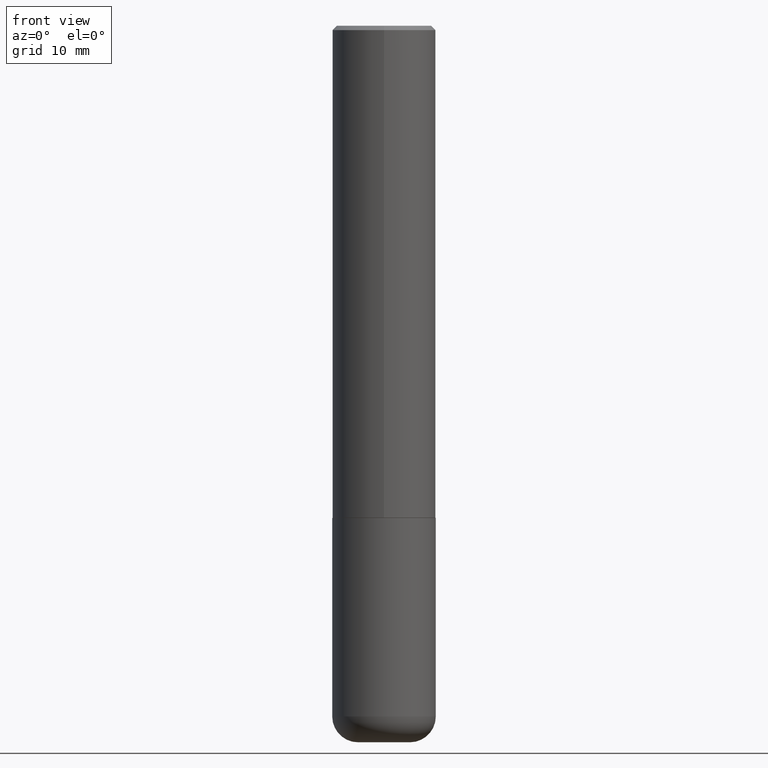
[diagram: clean part render]
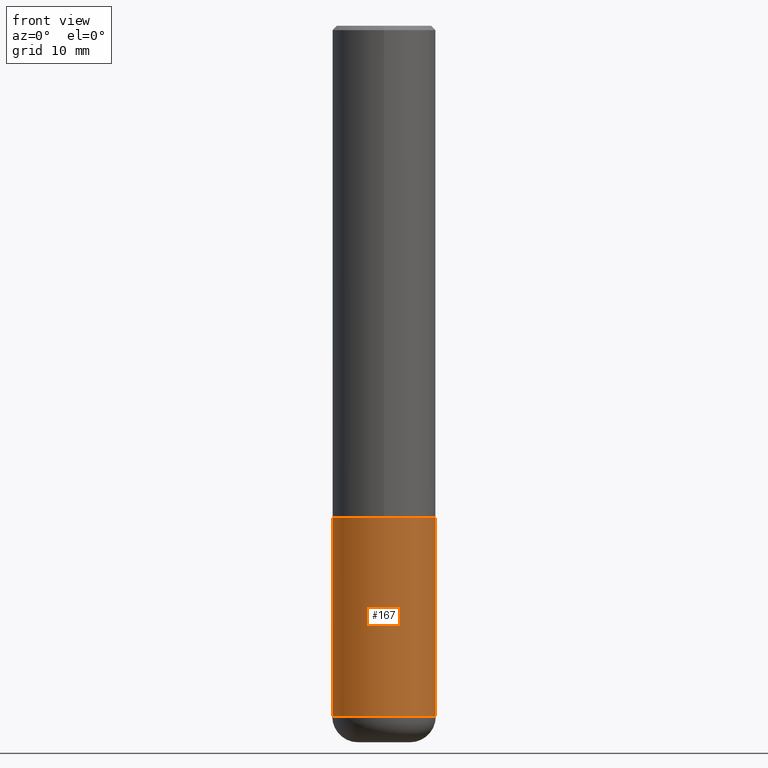
[diagram: same view with one face highlighted and labeled with its STEP entity id]
A machine part, front view. The second image highlights one B-rep face of the part: STEP entity #167.
In plain terms, the highlighted cylindrical surface (partial cylindrical patch) has radius 5.9995 mm, axis along (-0, 0, 1).
Its self-contained STEP definition (entity closure, byte-faithful):
#2 = DIRECTION ( 'NONE',  ( -2.445468806185136877E-29, 3.491481338843145188E-15, 1.000000000000000000 ) ) ;
#3 = ORIENTED_EDGE ( 'NONE', *, *, #411, .T. ) ;
#19 = CYLINDRICAL_SURFACE ( 'NONE', #400, 0.2361999999999999933 ) ;
#37 = CARTESIAN_POINT ( 'NONE',  ( -0.2361999999999998823, -9.318467682955017493E-15, -3.149600000000000399 ) ) ;
#45 = DIRECTION ( 'NONE',  ( -2.445468806185136597E-29, 3.491481338843145583E-15, 1.000000000000000000 ) ) ;
#64 = CIRCLE ( 'NONE', #298, 0.2361999999999999933 ) ;
#82 = DIRECTION ( 'NONE',  ( 1.000000000000000000, -6.982962677686264344E-15, 0.000000000000000000 ) ) ;
#106 = DIRECTION ( 'NONE',  ( -2.445468806185136597E-29, 3.491481338843145583E-15, 1.000000000000000000 ) ) ;
#109 = AXIS2_PLACEMENT_3D ( 'NONE', #120, #45, #82 ) ;
#114 = CARTESIAN_POINT ( 'NONE',  ( 0.2361999999999999933, -1.649375784469496131E-15, 1.151752954443000088E-29 ) ) ;
#117 = ORIENTED_EDGE ( 'NONE', *, *, #273, .F. ) ;
#120 = CARTESIAN_POINT ( 'NONE',  ( 7.702248551960706711E-29, -1.099676962482037231E-14, -3.149600000000000399 ) ) ;
#122 = CARTESIAN_POINT ( 'NONE',  ( 0.2361999999999998823, -1.264614540928986883E-14, -3.149600000000000399 ) ) ;
#125 = ORIENTED_EDGE ( 'NONE', *, *, #287, .T. ) ;
#142 = DIRECTION ( 'NONE',  ( -2.445468806185136877E-29, 3.491481338843145188E-15, 1.000000000000000000 ) ) ;
#144 = CARTESIAN_POINT ( 'NONE',  ( -0.2361999999999999933, -7.737699506793781719E-15, -2.244100000000000428 ) ) ;
#167 = ADVANCED_FACE ( 'NONE', ( #361 ), #19, .T. ) ;
#172 = LINE ( 'NONE', #114, #244 ) ;
#194 = CARTESIAN_POINT ( 'NONE',  ( 0.2361999999999999933, -9.484609056967400443E-15, -2.244100000000000428 ) ) ;
#197 = CARTESIAN_POINT ( 'NONE',  ( 5.487876547960065873E-29, -7.835233272497903917E-15, -2.244100000000000428 ) ) ;
#198 = LINE ( 'NONE', #259, #290 ) ;
#203 = CIRCLE ( 'NONE', #109, 0.2362000000000000210 ) ;
#239 = VERTEX_POINT ( 'NONE', #37 ) ;
#244 = VECTOR ( 'NONE', #2, 39.37007874015748143 ) ;
#245 = VERTEX_POINT ( 'NONE', #194 ) ;
#255 = EDGE_LOOP ( 'NONE', ( #117, #3, #125, #260 ) ) ;
#259 = CARTESIAN_POINT ( 'NONE',  ( -0.2361999999999999933, 1.678301941865356591E-15, -1.161852468318208757E-29 ) ) ;
#260 = ORIENTED_EDGE ( 'NONE', *, *, #281, .F. ) ;
#262 = DIRECTION ( 'NONE',  ( -2.445468806185136597E-29, 3.491481338843145583E-15, 1.000000000000000000 ) ) ;
#273 = EDGE_CURVE ( 'NONE', #239, #300, #198, .T. ) ;
#281 = EDGE_CURVE ( 'NONE', #300, #245, #64, .T. ) ;
#287 = EDGE_CURVE ( 'NONE', #372, #245, #172, .T. ) ;
#290 = VECTOR ( 'NONE', #142, 39.37007874015748143 ) ;
#298 = AXIS2_PLACEMENT_3D ( 'NONE', #197, #106, #329 ) ;
#300 = VERTEX_POINT ( 'NONE', #144 ) ;
#329 = DIRECTION ( 'NONE',  ( 1.000000000000000000, -6.982962677686269077E-15, 0.000000000000000000 ) ) ;
#344 = DIRECTION ( 'NONE',  ( 1.000000000000000000, -6.982962677686266711E-15, 4.876176775795936353E-29 ) ) ;
#355 = CARTESIAN_POINT ( 'NONE',  ( 0.000000000000000000, 0.000000000000000000, 0.000000000000000000 ) ) ;
#361 = FACE_OUTER_BOUND ( 'NONE', #255, .T. ) ;
#372 = VERTEX_POINT ( 'NONE', #122 ) ;
#400 = AXIS2_PLACEMENT_3D ( 'NONE', #355, #262, #344 ) ;
#411 = EDGE_CURVE ( 'NONE', #239, #372, #203, .T. ) ;